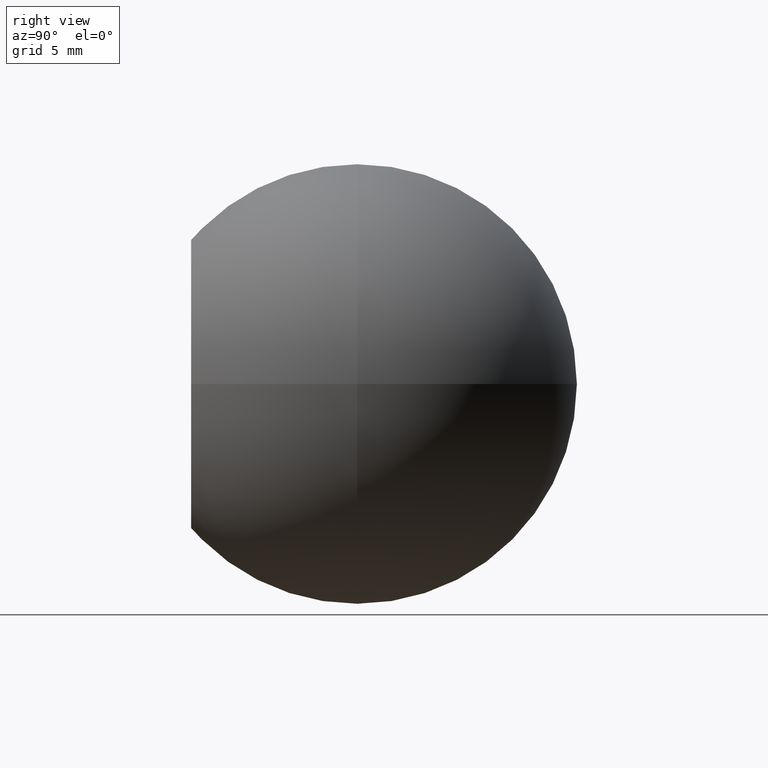
[diagram: clean part render]
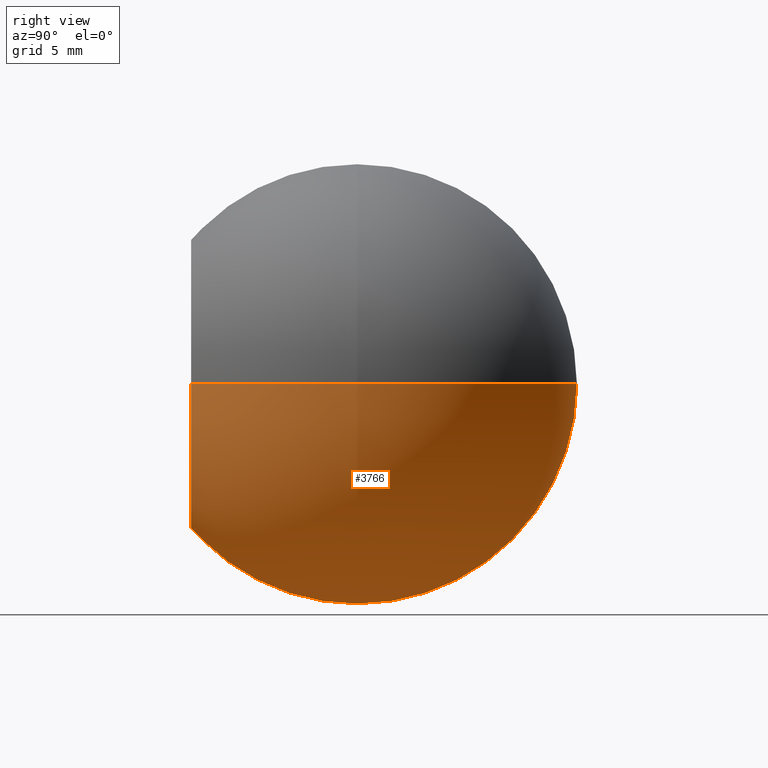
[diagram: same view with one face highlighted and labeled with its STEP entity id]
A machine part, right view. The second image highlights one B-rep face of the part: STEP entity #3766.
In plain terms, the highlighted spherical surface has radius 10 mm.
Its self-contained STEP definition (entity closure, byte-faithful):
#98 = ORIENTED_EDGE ( 'NONE', *, *, #2119, .F. ) ;
#565 = ORIENTED_EDGE ( 'NONE', *, *, #9128, .F. ) ;
#605 = CARTESIAN_POINT ( 'NONE',  ( -6.550000000000002500, -7.556288771612687900, 8.021436534415167200E-016 ) ) ;
#814 = DIRECTION ( 'NONE',  ( 1.000000000000000000, -1.631843486866781500E-018, 0.0000000000000000000 ) ) ;
#912 = DIRECTION ( 'NONE',  ( 0.0000000000000000000, 0.0000000000000000000, -1.000000000000000000 ) ) ;
#953 = AXIS2_PLACEMENT_3D ( 'NONE', #12823, #10855, #6700 ) ;
#1383 = ORIENTED_EDGE ( 'NONE', *, *, #13590, .T. ) ;
#2106 = DIRECTION ( 'NONE',  ( 1.000000000000000000, 0.0000000000000000000, -1.224646799147353200E-016 ) ) ;
#2119 = EDGE_CURVE ( 'NONE', #10934, #12548, #2821, .T. ) ;
#2314 = FACE_OUTER_BOUND ( 'NONE', #12153, .T. ) ;
#2737 = CIRCLE ( 'NONE', #2949, 10.00000000000000000 ) ;
#2821 = CIRCLE ( 'NONE', #9518, 10.00000000000000000 ) ;
#2949 = AXIS2_PLACEMENT_3D ( 'NONE', #2956, #912, #8239 ) ;
#2956 = CARTESIAN_POINT ( 'NONE',  ( 0.0000000000000000000, 0.0000000000000000000, 0.0000000000000000000 ) ) ;
#3028 = CARTESIAN_POINT ( 'NONE',  ( 0.0000000000000000000, 0.0000000000000000000, 0.0000000000000000000 ) ) ;
#3766 = ADVANCED_FACE ( 'NONE', ( #2314 ), #10343, .T. ) ;
#4291 = CARTESIAN_POINT ( 'NONE',  ( 6.550000000000002500, -7.556288771612687900, 0.0000000000000000000 ) ) ;
#6700 = DIRECTION ( 'NONE',  ( 1.000000000000000000, 0.0000000000000000000, 0.0000000000000000000 ) ) ;
#8239 = DIRECTION ( 'NONE',  ( -1.000000000000000000, 0.0000000000000000000, 0.0000000000000000000 ) ) ;
#9128 = EDGE_CURVE ( 'NONE', #12548, #13060, #11935, .T. ) ;
#9467 = CARTESIAN_POINT ( 'NONE',  ( 6.286418344423444200E-016, 10.00000000000000000, 0.0000000000000000000 ) ) ;
#9518 = AXIS2_PLACEMENT_3D ( 'NONE', #9800, #12643, #2106 ) ;
#9800 = CARTESIAN_POINT ( 'NONE',  ( 0.0000000000000000000, 0.0000000000000000000, 0.0000000000000000000 ) ) ;
#10343 = SPHERICAL_SURFACE ( 'NONE', #10668, 10.00000000000000000 ) ;
#10668 = AXIS2_PLACEMENT_3D ( 'NONE', #3028, #12495, #814 ) ;
#10855 = DIRECTION ( 'NONE',  ( -1.631843486866781500E-018, -1.000000000000000000, -0.0000000000000000000 ) ) ;
#10934 = VERTEX_POINT ( 'NONE', #9467 ) ;
#11935 = CIRCLE ( 'NONE', #953, 6.550000000000002500 ) ;
#12153 = EDGE_LOOP ( 'NONE', ( #98, #1383, #565 ) ) ;
#12495 = DIRECTION ( 'NONE',  ( -0.0000000000000000000, 0.0000000000000000000, 1.000000000000000000 ) ) ;
#12548 = VERTEX_POINT ( 'NONE', #605 ) ;
#12643 = DIRECTION ( 'NONE',  ( 1.224646799147353200E-016, -1.998431902900859900E-034, 1.000000000000000000 ) ) ;
#12823 = CARTESIAN_POINT ( 'NONE',  ( -2.864911548550857300E-017, -7.556288771612687900, 0.0000000000000000000 ) ) ;
#13060 = VERTEX_POINT ( 'NONE', #4291 ) ;
#13590 = EDGE_CURVE ( 'NONE', #10934, #13060, #2737, .T. ) ;